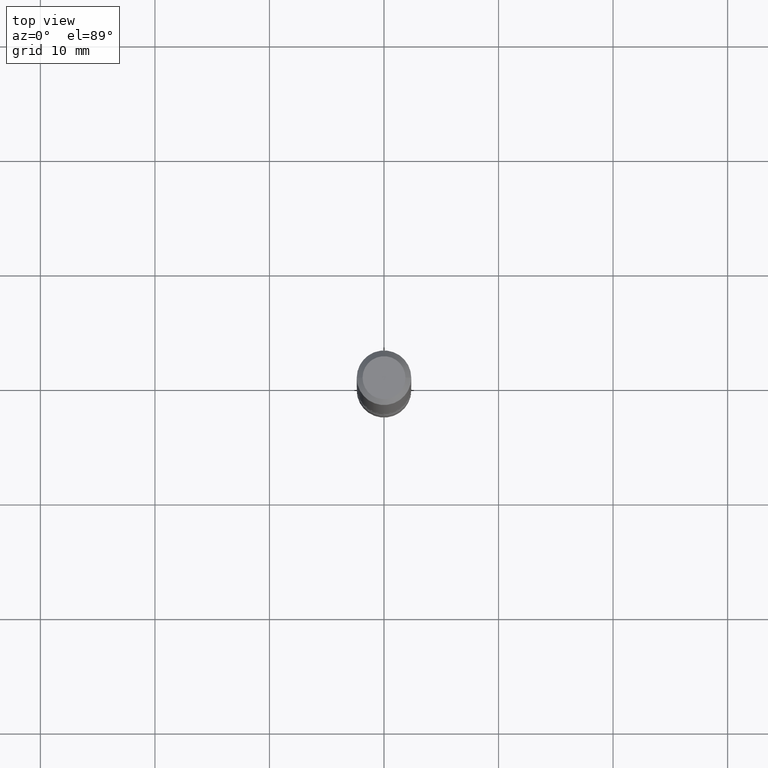
[diagram: clean part render]
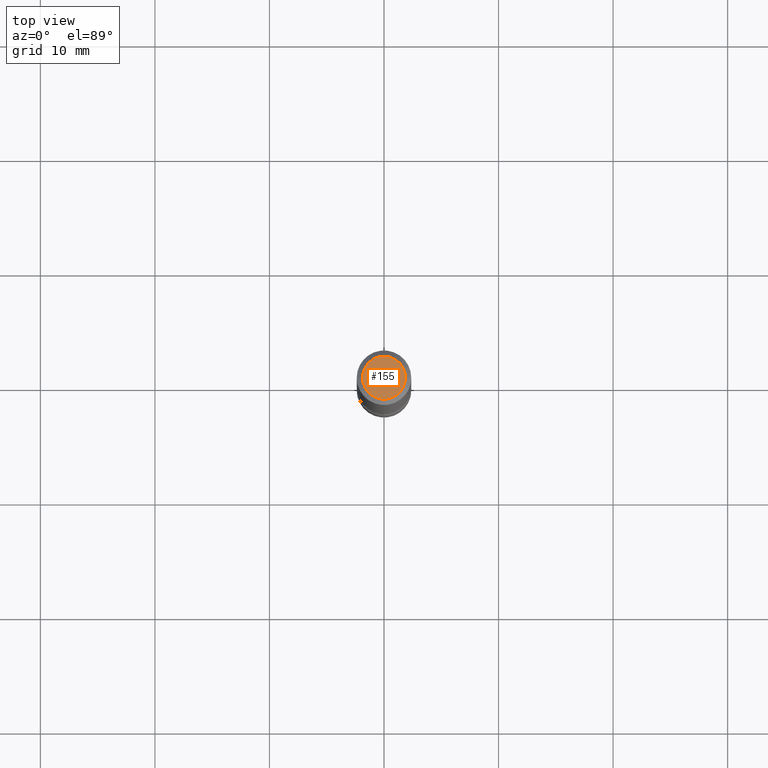
[diagram: same view with one face highlighted and labeled with its STEP entity id]
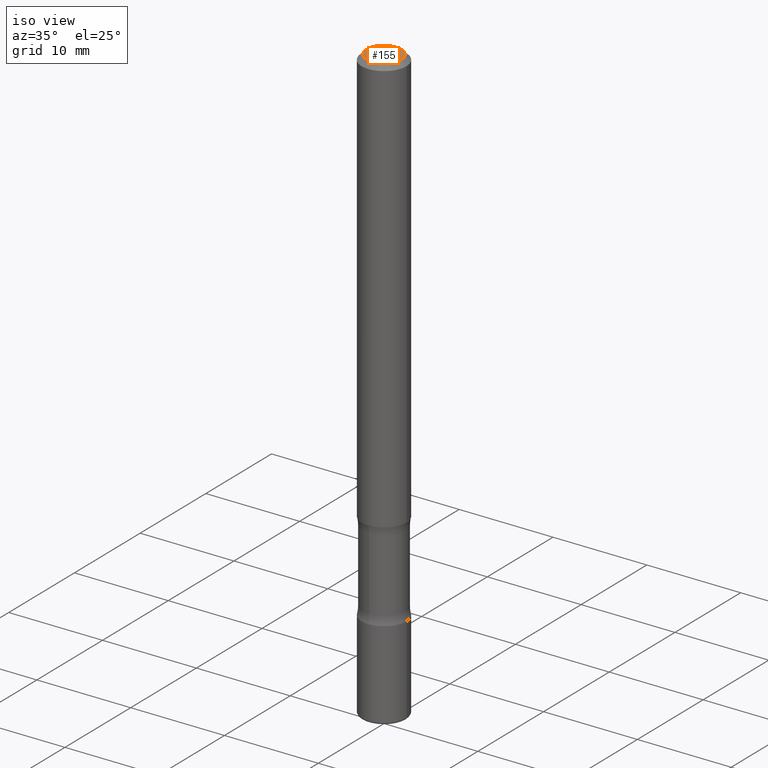
[diagram: same view with one face highlighted and labeled with its STEP entity id]
A machine part, top view. The second image highlights one B-rep face of the part: STEP entity #155.
A second angle (iso view) of the same face is appended — the face is thin or edge-on in the first view.
In plain terms, the highlighted planar face has unit normal (0, -0, -1).
Its self-contained STEP definition (entity closure, byte-faithful):
#3 = DIRECTION ( 'NONE',  ( -2.445468806185136597E-29, 3.491481338843145583E-15, 1.000000000000000000 ) ) ;
#62 = CIRCLE ( 'NONE', #161, 0.07374999999999984346 ) ;
#73 = EDGE_CURVE ( 'NONE', #183, #337, #272, .T. ) ;
#88 = AXIS2_PLACEMENT_3D ( 'NONE', #543, #304, #134 ) ;
#91 = DIRECTION ( 'NONE',  ( 2.438088387897960049E-29, -3.491481338843145188E-15, -1.000000000000000000 ) ) ;
#129 = FACE_OUTER_BOUND ( 'NONE', #158, .T. ) ;
#131 = DIRECTION ( 'NONE',  ( 1.000000000000000000, -6.982962677686266711E-15, 4.876176775795935793E-29 ) ) ;
#134 = DIRECTION ( 'NONE',  ( 1.000000000000000000, -6.982962677686266711E-15, 4.876176775795935793E-29 ) ) ;
#155 = ADVANCED_FACE ( 'NONE', ( #129 ), #308, .F. ) ;
#158 = EDGE_LOOP ( 'NONE', ( #319, #270 ) ) ;
#160 = CARTESIAN_POINT ( 'NONE',  ( -0.07374999999999984346, 5.499083108677921624E-16, -3.723527850031186263E-30 ) ) ;
#161 = AXIS2_PLACEMENT_3D ( 'NONE', #231, #3, #131 ) ;
#182 = AXIS2_PLACEMENT_3D ( 'NONE', #472, #91, #422 ) ;
#183 = VERTEX_POINT ( 'NONE', #403 ) ;
#231 = CARTESIAN_POINT ( 'NONE',  ( 0.000000000000000000, 0.000000000000000000, 0.000000000000000000 ) ) ;
#270 = ORIENTED_EDGE ( 'NONE', *, *, #73, .T. ) ;
#272 = CIRCLE ( 'NONE', #88, 0.07374999999999984346 ) ;
#304 = DIRECTION ( 'NONE',  ( -2.445468806185136597E-29, 3.491481338843145583E-15, 1.000000000000000000 ) ) ;
#308 = PLANE ( 'NONE',  #182 ) ;
#319 = ORIENTED_EDGE ( 'NONE', *, *, #414, .T. ) ;
#337 = VERTEX_POINT ( 'NONE', #160 ) ;
#403 = CARTESIAN_POINT ( 'NONE',  ( 0.07374999999999984346, -6.094815207017961198E-16, 3.931526600461598749E-30 ) ) ;
#414 = EDGE_CURVE ( 'NONE', #337, #183, #62, .T. ) ;
#422 = DIRECTION ( 'NONE',  ( -1.000000000000000000, 6.982962677686265922E-15, -4.876176775795935793E-29 ) ) ;
#472 = CARTESIAN_POINT ( 'NONE',  ( 5.149934974793610063E-16, 0.07374999999999984346, -2.574967487396814399E-16 ) ) ;
#543 = CARTESIAN_POINT ( 'NONE',  ( 0.000000000000000000, 0.000000000000000000, 0.000000000000000000 ) ) ;